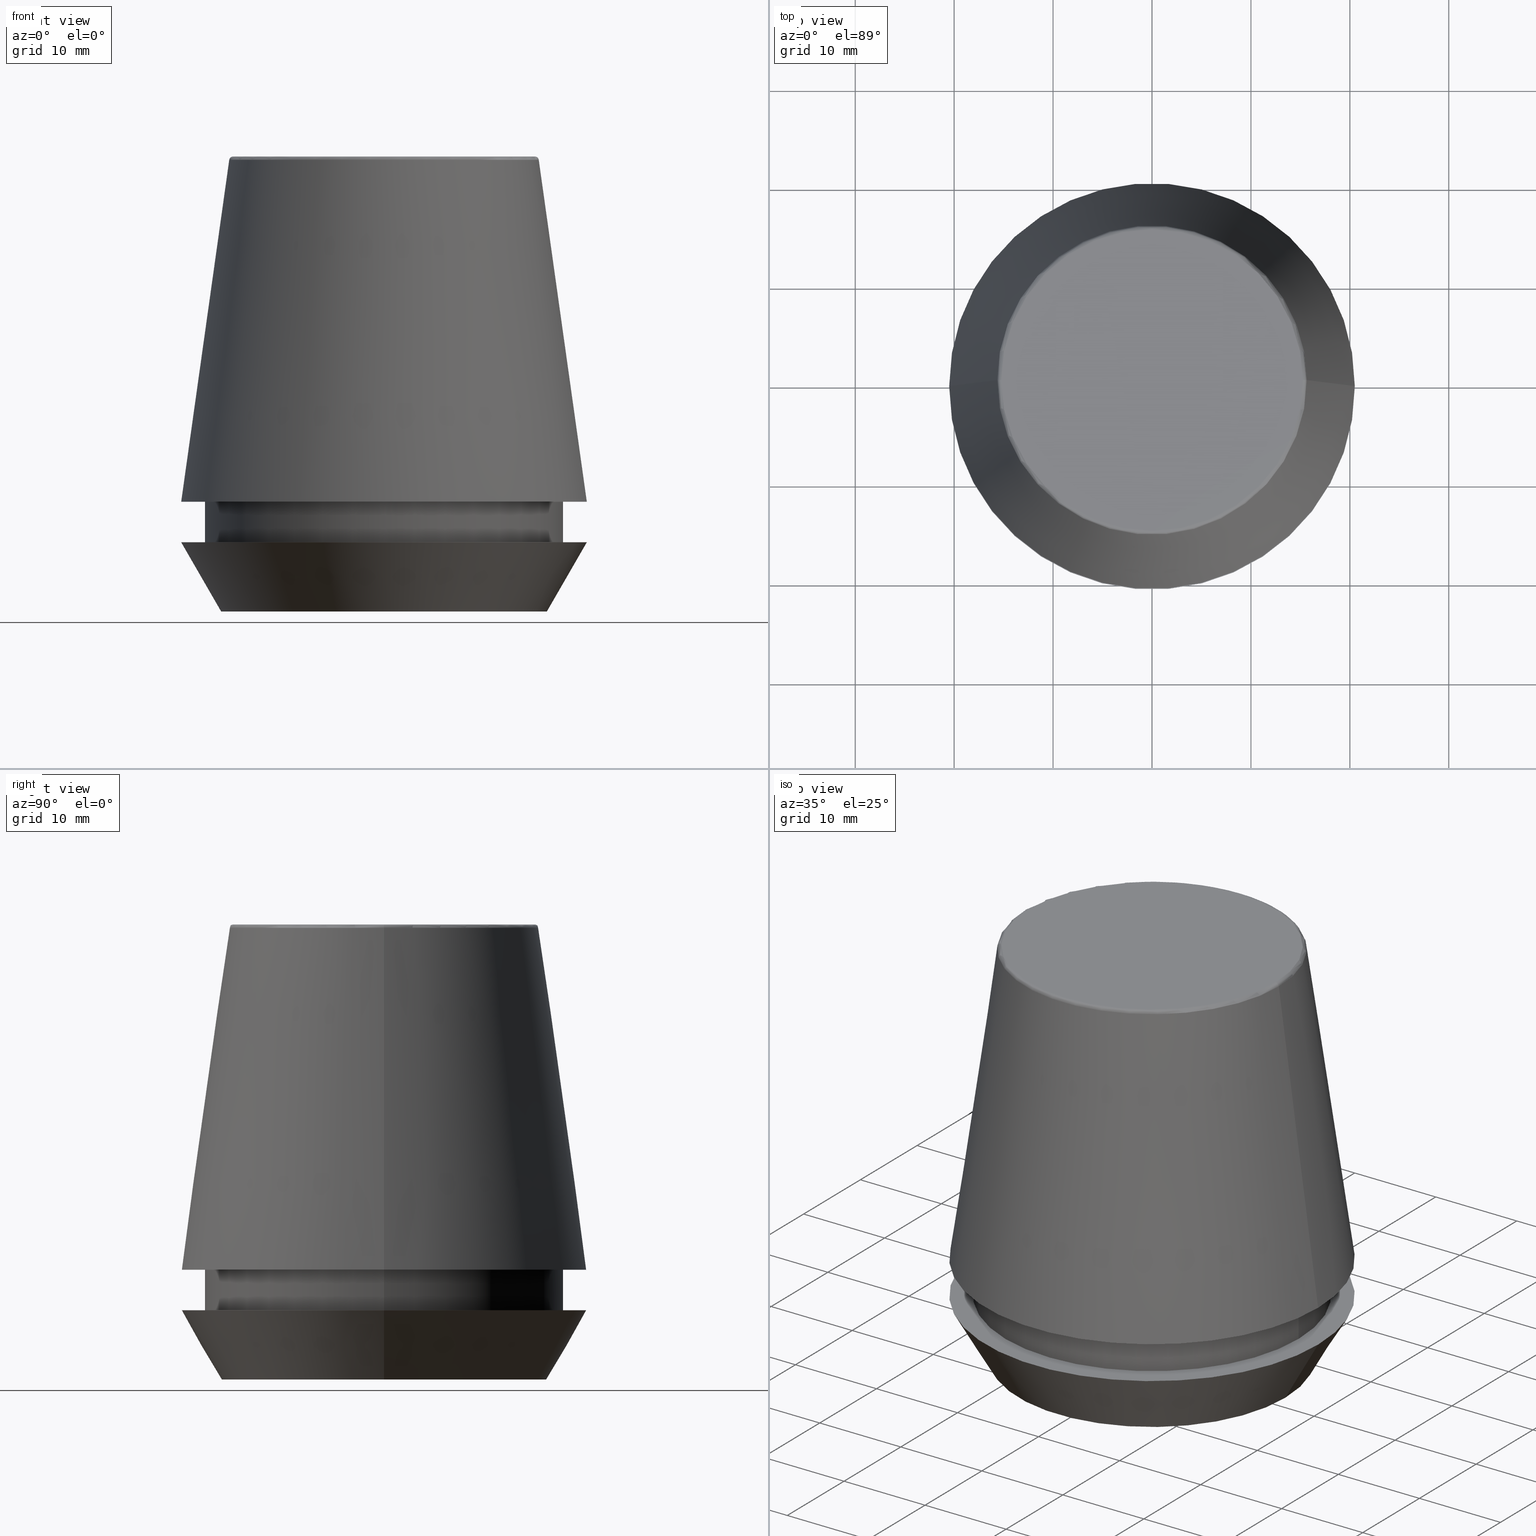
[diagram: canonical four-view strip — front | top / right | iso, engineering-drawing reading convention]
A machine part, canonical four-view strip (front | top / right | iso — engineering-drawing reading convention). The complete STEP part file that produces these views, byte-faithful:
ISO-10303-21;
HEADER;
FILE_DESCRIPTION (( 'STEP AP203' ),
    '1' );
FILE_NAME ('TAP COLLET ER 40G 22.0 X 18.0.STEP',
    '2019-04-10T04:18:57',
    ( '' ),
    ( '' ),
    'SwSTEP 2.0',
    'SolidWorks 2014',
    '' );
FILE_SCHEMA (( 'CONFIG_CONTROL_DESIGN' ));
ENDSEC;

DATA;
#1 = DIRECTION ( 'NONE',  ( 1.000000000000000000, 0.0000000000000000000, 0.0000000000000000000 ) ) ;
#2 = DIRECTION ( 'NONE',  ( 0.0000000000000000000, 0.0000000000000000000, 1.000000000000000000 ) ) ;
#3 = CARTESIAN_POINT ( 'NONE',  ( 0.0000000000000000000, 0.0000000000000000000, 6.999999999999999100 ) ) ;
#4 = DATE_AND_TIME ( #84, #159 ) ;
#5 = EDGE_CURVE ( 'NONE', #165, #91, #315, .T. ) ;
#6 = DIRECTION ( 'NONE',  ( 1.000000000000000000, 0.0000000000000000000, 0.0000000000000000000 ) ) ;
#7 = VECTOR ( 'NONE', #155, 1000.000000000000000 ) ;
#8 = EDGE_LOOP ( 'NONE', ( #63, #186, #370, #310 ) ) ;
#9 = EDGE_LOOP ( 'NONE', ( #60, #185 ) ) ;
#10 = PRODUCT_DEFINITION_SHAPE ( 'NONE', 'NONE',  #162 ) ;
#11 = CARTESIAN_POINT ( 'NONE',  ( -20.50000000000000000, 2.510525938252074100E-015, 7.000000000000006200 ) ) ;
#12 = EDGE_CURVE ( 'NONE', #49, #363, #160, .T. ) ;
#13 = PERSON_AND_ORGANIZATION ( #78, #73 ) ;
#14 = CONICAL_SURFACE ( 'NONE', #244, 20.50032537154048700, 0.1396263401595396200 ) ;
#15 = LINE ( 'NONE', #376, #7 ) ;
#16 = EDGE_CURVE ( 'NONE', #165, #173, #15, .T. ) ;
#17 = CARTESIAN_POINT ( 'NONE',  ( 0.0000000000000000000, 0.0000000000000000000, 45.60000000000000100 ) ) ;
#18 =( NAMED_UNIT ( * ) SI_UNIT ( $, .STERADIAN. ) SOLID_ANGLE_UNIT ( ) );
#19 = ORIENTED_EDGE ( 'NONE', *, *, #16, .T. ) ;
#20 = CARTESIAN_POINT ( 'NONE',  ( 0.0000000000000000000, 0.0000000000000000000, 11.09999999999999800 ) ) ;
#21 = DIRECTION ( 'NONE',  ( 1.000000000000000000, 0.0000000000000000000, 0.0000000000000000000 ) ) ;
#22 = ORIENTED_EDGE ( 'NONE', *, *, #329, .T. ) ;
#23 = ORIENTED_EDGE ( 'NONE', *, *, #212, .T. ) ;
#24 = DIRECTION ( 'NONE',  ( 1.000000000000000000, 0.0000000000000000000, 0.0000000000000000000 ) ) ;
#25 = CC_DESIGN_APPROVAL ( #178, ( #134 ) ) ;
#26 = CARTESIAN_POINT ( 'NONE',  ( 0.0000000000000000000, 0.0000000000000000000, 11.09999999999999800 ) ) ;
#27 = CARTESIAN_POINT ( 'NONE',  ( 0.0000000000000000000, 0.0000000000000000000, 0.0000000000000000000 ) ) ;
#28 = EDGE_CURVE ( 'NONE', #158, #382, #237, .T. ) ;
#29 = DIRECTION ( 'NONE',  ( 1.000000000000000000, 0.0000000000000000000, 0.0000000000000000000 ) ) ;
#30 = CIRCLE ( 'NONE', #252, 15.24773554530077600 ) ;
#31 = CALENDAR_DATE ( 2019, 10, 4 ) ;
#32 = CC_DESIGN_DATE_AND_TIME_ASSIGNMENT ( #4, #308, ( #357 ) ) ;
#33 = DIRECTION ( 'NONE',  ( -0.0000000000000000000, -0.0000000000000000000, 1.000000000000000000 ) ) ;
#34 = FACE_OUTER_BOUND ( 'NONE', #256, .T. ) ;
#35 = AXIS2_PLACEMENT_3D ( 'NONE', #3, #269, #236 ) ;
#36 = CARTESIAN_POINT ( 'NONE',  ( 0.0000000000000000000, 0.0000000000000000000, 46.00000000000000000 ) ) ;
#37 = APPROVAL_DATE_TIME ( #346, #178 ) ;
#38 = PRODUCT ( 'TAP COLLET ER 40G 22.0 X 18.0', 'TAP COLLET ER 40G 22.0 X 18.0', '', ( #106 ) ) ;
#39 = FACE_BOUND ( 'NONE', #247, .T. ) ;
#40 = EDGE_CURVE ( 'NONE', #327, #173, #307, .T. ) ;
#41 = PERSON_AND_ORGANIZATION_ROLE ( 'creator' ) ;
#42 = APPROVAL_PERSON_ORGANIZATION ( #121, #178, #115 ) ;
#43 = FACE_OUTER_BOUND ( 'NONE', #230, .T. ) ;
#44 = DIRECTION ( 'NONE',  ( 0.4999999999999941700, 0.0000000000000000000, 0.8660254037844420400 ) ) ;
#45 = ADVANCED_FACE ( 'NONE', ( #87 ), #64, .F. ) ;
#46 = DIRECTION ( 'NONE',  ( -1.000000000000000000, 1.224646799147353900E-016, 0.0000000000000000000 ) ) ;
#47 = AXIS2_PLACEMENT_3D ( 'NONE', #270, #194, #61 ) ;
#48 = CC_DESIGN_PERSON_AND_ORGANIZATION_ASSIGNMENT ( #95, #41, ( #134 ) ) ;
#49 = VERTEX_POINT ( 'NONE', #232 ) ;
#50 = ORIENTED_EDGE ( 'NONE', *, *, #272, .F. ) ;
#51 = CARTESIAN_POINT ( 'NONE',  ( 18.10000000000000500, 0.0000000000000000000, 46.00000000000000000 ) ) ;
#52 = FACE_BOUND ( 'NONE', #89, .T. ) ;
#53 = COORDINATED_UNIVERSAL_TIME_OFFSET ( 5, 30, .AHEAD. ) ;
#54 = CIRCLE ( 'NONE', #360, 20.50000000000000000 ) ;
#55 = ORIENTED_EDGE ( 'NONE', *, *, #212, .F. ) ;
#56 = ORIENTED_EDGE ( 'NONE', *, *, #341, .T. ) ;
#57 = ORIENTED_EDGE ( 'NONE', *, *, #338, .T. ) ;
#58 = AXIS2_PLACEMENT_3D ( 'NONE', #180, #246, #1 ) ;
#59 = CARTESIAN_POINT ( 'NONE',  ( 0.0000000000000000000, 20.50032537154048700, 11.09999999999999800 ) ) ;
#60 = ORIENTED_EDGE ( 'NONE', *, *, #204, .F. ) ;
#61 = DIRECTION ( 'NONE',  ( 1.000000000000000000, 0.0000000000000000000, 0.0000000000000000000 ) ) ;
#62 = CARTESIAN_POINT ( 'NONE',  ( -15.24773554530077600, 1.891563625393435400E-015, 46.00000000000000000 ) ) ;
#63 = ORIENTED_EDGE ( 'NONE', *, *, #5, .T. ) ;
#64 = PLANE ( 'NONE',  #375 ) ;
#65 = LOCAL_TIME ( 9, 48, 57.00000000000000000, #140 ) ;
#66 = DIRECTION ( 'NONE',  ( 0.0000000000000000000, -1.000000000000000000, 0.0000000000000000000 ) ) ;
#67 = FACE_OUTER_BOUND ( 'NONE', #243, .T. ) ;
#68 = EDGE_LOOP ( 'NONE', ( #75, #288, #210, #325 ) ) ;
#69 = CARTESIAN_POINT ( 'NONE',  ( 20.50000000000000000, 0.0000000000000000000, 7.000000000000006200 ) ) ;
#70 = APPROVAL ( #274, 'UNSPECIFIED' ) ;
#71 = LOCAL_TIME ( 9, 48, 57.00000000000000000, #147 ) ;
#72 = DIRECTION ( 'NONE',  ( 1.000000000000000000, 0.0000000000000000000, 0.0000000000000000000 ) ) ;
#73 = ORGANIZATION ( 'UNSPECIFIED', 'UNSPECIFIED', '' ) ;
#74 = APPROVAL_ROLE ( '' ) ;
#75 = ORIENTED_EDGE ( 'NONE', *, *, #324, .F. ) ;
#76 = ADVANCED_FACE ( 'NONE', ( #241 ), #122, .T. ) ;
#77 = ORIENTED_EDGE ( 'NONE', *, *, #40, .T. ) ;
#78 = PERSON ( 'UNSPECIFIED', 'UNSPECIFIED', 'UNSPECIFIED', ('UNSPECIFIED'), ('UNSPECIFIED'), ('UNSPECIFIED') ) ;
#79 = EDGE_CURVE ( 'NONE', #165, #317, #199, .T. ) ;
#80 = VECTOR ( 'NONE', #137, 1000.000000000000000 ) ;
#81 = ORIENTED_EDGE ( 'NONE', *, *, #319, .F. ) ;
#82 = CARTESIAN_POINT ( 'NONE',  ( -15.24773554530077600, 1.867309052979791600E-015, 45.60000000000000100 ) ) ;
#83 = DIRECTION ( 'NONE',  ( 1.000000000000000000, 0.0000000000000000000, 0.0000000000000000000 ) ) ;
#84 = CALENDAR_DATE ( 2019, 10, 4 ) ;
#85 = EDGE_CURVE ( 'NONE', #220, #136, #54, .T. ) ;
#86 = DIRECTION ( 'NONE',  ( 0.0000000000000000000, 0.0000000000000000000, -1.000000000000000000 ) ) ;
#87 = FACE_OUTER_BOUND ( 'NONE', #9, .T. ) ;
#88 = ADVANCED_FACE ( 'NONE', ( #362 ), #227, .T. ) ;
#89 = EDGE_LOOP ( 'NONE', ( #23, #103 ) ) ;
#90 = ORIENTED_EDGE ( 'NONE', *, *, #12, .T. ) ;
#91 = VERTEX_POINT ( 'NONE', #260 ) ;
#92 = APPLICATION_PROTOCOL_DEFINITION ( 'international standard', 'config_control_design', 1994, #385 ) ;
#93 = CLOSED_SHELL ( 'NONE', ( #262, #352, #113, #326, #45, #332, #216, #88, #265, #76, #171, #255 ) ) ;
#94 = DIRECTION ( 'NONE',  ( 1.000000000000000000, 0.0000000000000000000, 0.0000000000000000000 ) ) ;
#95 = PERSON_AND_ORGANIZATION ( #78, #73 ) ;
#96 = CC_DESIGN_PERSON_AND_ORGANIZATION_ASSIGNMENT ( #380, #215, ( #38 ) ) ;
#97 = ORIENTED_EDGE ( 'NONE', *, *, #107, .T. ) ;
#98 = ADVANCED_BREP_SHAPE_REPRESENTATION ( 'TAP COLLET ER 40G 22.0 X 18.0', ( #176, #114 ), #278 ) ;
#99 = ORIENTED_EDGE ( 'NONE', *, *, #85, .F. ) ;
#100 = DIRECTION ( 'NONE',  ( 0.0000000000000000000, 0.0000000000000000000, -1.000000000000000000 ) ) ;
#101 = PRODUCT_RELATED_PRODUCT_CATEGORY ( 'detail', '', ( #38 ) ) ;
#102 = DIRECTION ( 'NONE',  ( -0.0000000000000000000, -0.0000000000000000000, 1.000000000000000000 ) ) ;
#103 = ORIENTED_EDGE ( 'NONE', *, *, #28, .T. ) ;
#104 = DIRECTION ( 'NONE',  ( -0.0000000000000000000, -0.0000000000000000000, 1.000000000000000000 ) ) ;
#105 = ORIENTED_EDGE ( 'NONE', *, *, #5, .F. ) ;
#106 = MECHANICAL_CONTEXT ( 'NONE', #145, 'mechanical' ) ;
#107 = EDGE_CURVE ( 'NONE', #91, #165, #354, .T. ) ;
#108 = CONICAL_SURFACE ( 'NONE', #229, 16.45854811567268100, 0.5235987755982921500 ) ;
#109 = DIRECTION ( 'NONE',  ( -1.000000000000000000, 0.0000000000000000000, -0.0000000000000000000 ) ) ;
#110 = CC_DESIGN_APPROVAL ( #153, ( #162 ) ) ;
#111 = TOROIDAL_SURFACE ( 'NONE', #242, 15.24773554530077600, 0.3999999999999991900 ) ;
#112 = DIRECTION ( 'NONE',  ( -0.0000000000000000000, -0.0000000000000000000, 1.000000000000000000 ) ) ;
#113 = ADVANCED_FACE ( 'NONE', ( #277 ), #266, .T. ) ;
#114 = AXIS2_PLACEMENT_3D ( 'NONE', #27, #2, #203 ) ;
#115 = APPROVAL_ROLE ( '' ) ;
#116 = DIRECTION ( 'NONE',  ( -0.0000000000000000000, -0.0000000000000000000, 1.000000000000000000 ) ) ;
#117 = CARTESIAN_POINT ( 'NONE',  ( 15.64384277279740400, 2.213191991290356800E-015, 45.65566924038402900 ) ) ;
#118 = FACE_OUTER_BOUND ( 'NONE', #273, .T. ) ;
#119 = ORIENTED_EDGE ( 'NONE', *, *, #12, .F. ) ;
#120 = AXIS2_PLACEMENT_3D ( 'NONE', #59, #174, #21 ) ;
#121 = PERSON_AND_ORGANIZATION ( #78, #73 ) ;
#122 = CONICAL_SURFACE ( 'NONE', #383, 20.50032537154048700, 0.1396263401595396200 ) ;
#123 = CARTESIAN_POINT ( 'NONE',  ( 18.10000000000000500, 0.0000000000000000000, 11.09999999999999800 ) ) ;
#124 = CARTESIAN_POINT ( 'NONE',  ( 15.24773554530077600, 0.0000000000000000000, 45.60000000000000100 ) ) ;
#125 = DIRECTION ( 'NONE',  ( -0.0000000000000000000, -0.0000000000000000000, 1.000000000000000000 ) ) ;
#126 = AXIS2_PLACEMENT_3D ( 'NONE', #344, #253, #24 ) ;
#127 = CIRCLE ( 'NONE', #348, 18.10000000000000100 ) ;
#128 = PERSON_AND_ORGANIZATION ( #78, #73 ) ;
#129 = FACE_OUTER_BOUND ( 'NONE', #205, .T. ) ;
#130 = DIRECTION ( 'NONE',  ( 0.0000000000000000000, -0.0000000000000000000, 1.000000000000000000 ) ) ;
#131 = VERTEX_POINT ( 'NONE', #271 ) ;
#132 = ORIENTED_EDGE ( 'NONE', *, *, #316, .T. ) ;
#133 = DIRECTION ( 'NONE',  ( -0.0000000000000000000, -0.0000000000000000000, 1.000000000000000000 ) ) ;
#134 = PRODUCT_DEFINITION_FORMATION_WITH_SPECIFIED_SOURCE ( 'ANY', '', #38, .NOT_KNOWN. ) ;
#135 = AXIS2_PLACEMENT_3D ( 'NONE', #20, #223, #314 ) ;
#136 = VERTEX_POINT ( 'NONE', #69 ) ;
#137 = DIRECTION ( 'NONE',  ( -0.0000000000000000000, -0.0000000000000000000, 1.000000000000000000 ) ) ;
#138 = DIRECTION ( 'NONE',  ( -1.000000000000000000, 0.0000000000000000000, -0.0000000000000000000 ) ) ;
#139 = DIRECTION ( 'NONE',  ( 0.0000000000000000000, 0.0000000000000000000, -1.000000000000000000 ) ) ;
#140 = COORDINATED_UNIVERSAL_TIME_OFFSET ( 5, 30, .AHEAD. ) ;
#141 = VERTEX_POINT ( 'NONE', #323 ) ;
#142 = CIRCLE ( 'NONE', #226, 20.50032537154048700 ) ;
#143 = APPROVAL_STATUS ( 'not_yet_approved' ) ;
#144 = EDGE_LOOP ( 'NONE', ( #322, #213, #57, #77 ) ) ;
#145 = APPLICATION_CONTEXT ( 'configuration controlled 3d designs of mechanical parts and assemblies' ) ;
#146 = CARTESIAN_POINT ( 'NONE',  ( 0.0000000000000000000, 0.0000000000000000000, 46.00000000000000000 ) ) ;
#147 = COORDINATED_UNIVERSAL_TIME_OFFSET ( 5, 30, .AHEAD. ) ;
#148 = CC_DESIGN_DATE_AND_TIME_ASSIGNMENT ( #198, #261, ( #162 ) ) ;
#149 = DIRECTION ( 'NONE',  ( 1.000000000000000000, 0.0000000000000000000, 0.0000000000000000000 ) ) ;
#150 = SHAPE_DEFINITION_REPRESENTATION ( #10, #98 ) ;
#151 = CARTESIAN_POINT ( 'NONE',  ( 0.0000000000000000000, 0.0000000000000000000, 11.09999999999999800 ) ) ;
#152 = CARTESIAN_POINT ( 'NONE',  ( 20.50032537154048700, 2.510565784773633700E-015, 11.09999999999999800 ) ) ;
#153 = APPROVAL ( #143, 'UNSPECIFIED' ) ;
#154 = LINE ( 'NONE', #51, #80 ) ;
#155 = DIRECTION ( 'NONE',  ( 0.1391731009600587200, 1.704378926181473400E-017, -0.9902680687415712500 ) ) ;
#156 = VERTEX_POINT ( 'NONE', #62 ) ;
#157 = AXIS2_PLACEMENT_3D ( 'NONE', #328, #139, #109 ) ;
#158 = VERTEX_POINT ( 'NONE', #349 ) ;
#159 = LOCAL_TIME ( 9, 48, 57.00000000000000000, #235 ) ;
#160 = CIRCLE ( 'NONE', #35, 18.10000000000000100 ) ;
#161 = PERSON_AND_ORGANIZATION_ROLE ( 'design_supplier' ) ;
#162 = PRODUCT_DEFINITION ( 'UNKNOWN', '', #134, #182 ) ;
#163 = CARTESIAN_POINT ( 'NONE',  ( 0.0000000000000000000, 0.0000000000000000000, 0.0000000000000000000 ) ) ;
#164 = CARTESIAN_POINT ( 'NONE',  ( 0.0000000000000000000, 0.0000000000000000000, 11.09999999999999800 ) ) ;
#165 = VERTEX_POINT ( 'NONE', #117 ) ;
#166 = DIRECTION ( 'NONE',  ( -0.0000000000000000000, -0.0000000000000000000, 1.000000000000000000 ) ) ;
#167 = DIRECTION ( 'NONE',  ( -0.0000000000000000000, -0.0000000000000000000, 1.000000000000000000 ) ) ;
#168 = ORIENTED_EDGE ( 'NONE', *, *, #204, .T. ) ;
#169 = EDGE_CURVE ( 'NONE', #136, #220, #191, .T. ) ;
#170 = CARTESIAN_POINT ( 'NONE',  ( 0.0000000000000000000, 15.24773554530077600, 46.00000000000000000 ) ) ;
#171 = ADVANCED_FACE ( 'NONE', ( #43 ), #111, .T. ) ;
#172 = CC_DESIGN_PERSON_AND_ORGANIZATION_ASSIGNMENT ( #128, #181, ( #162 ) ) ;
#173 = VERTEX_POINT ( 'NONE', #152 ) ;
#174 = DIRECTION ( 'NONE',  ( 0.0000000000000000000, -0.0000000000000000000, 1.000000000000000000 ) ) ;
#175 = CARTESIAN_POINT ( 'NONE',  ( 0.0000000000000000000, 0.0000000000000000000, 45.65566924038402900 ) ) ;
#176 = MANIFOLD_SOLID_BREP ( 'Revolve1', #93 ) ;
#177 = EDGE_LOOP ( 'NONE', ( #90, #386, #55, #258 ) ) ;
#178 = APPROVAL ( #321, 'UNSPECIFIED' ) ;
#179 = APPROVAL_ROLE ( '' ) ;
#180 = CARTESIAN_POINT ( 'NONE',  ( 0.0000000000000000000, 0.0000000000000000000, 11.09999999999999800 ) ) ;
#181 = PERSON_AND_ORGANIZATION_ROLE ( 'creator' ) ;
#182 = DESIGN_CONTEXT ( 'detailed design', #385, 'design' ) ;
#183 = DIRECTION ( 'NONE',  ( 1.000000000000000000, 0.0000000000000000000, 0.0000000000000000000 ) ) ;
#184 = VECTOR ( 'NONE', #358, 1000.000000000000000 ) ;
#185 = ORIENTED_EDGE ( 'NONE', *, *, #311, .F. ) ;
#186 = ORIENTED_EDGE ( 'NONE', *, *, #281, .T. ) ;
#187 = DIRECTION ( 'NONE',  ( -0.0000000000000000000, -0.0000000000000000000, 1.000000000000000000 ) ) ;
#188 = CC_DESIGN_APPROVAL ( #70, ( #357 ) ) ;
#189 = CARTESIAN_POINT ( 'NONE',  ( -18.10000000000000500, 2.216610706456710000E-015, 46.00000000000000000 ) ) ;
#190 = LINE ( 'NONE', #309, #263 ) ;
#191 = CIRCLE ( 'NONE', #298, 20.50000000000000000 ) ;
#192 = ORIENTED_EDGE ( 'NONE', *, *, #316, .F. ) ;
#193 = CC_DESIGN_PERSON_AND_ORGANIZATION_ASSIGNMENT ( #13, #161, ( #134 ) ) ;
#194 = DIRECTION ( 'NONE',  ( -0.0000000000000000000, -0.0000000000000000000, 1.000000000000000000 ) ) ;
#195 = PLANE ( 'NONE',  #224 ) ;
#196 = PLANE ( 'NONE',  #120 ) ;
#197 = FACE_OUTER_BOUND ( 'NONE', #304, .T. ) ;
#198 = DATE_AND_TIME ( #276, #361 ) ;
#199 = CIRCLE ( 'NONE', #364, 0.3999999999999975800 ) ;
#200 = ORIENTED_EDGE ( 'NONE', *, *, #169, .T. ) ;
#201 = DIRECTION ( 'NONE',  ( 1.000000000000000000, 0.0000000000000000000, 0.0000000000000000000 ) ) ;
#202 =( NAMED_UNIT ( * ) PLANE_ANGLE_UNIT ( ) SI_UNIT ( $, .RADIAN. ) );
#203 = DIRECTION ( 'NONE',  ( 1.000000000000000000, 0.0000000000000000000, 0.0000000000000000000 ) ) ;
#204 = EDGE_CURVE ( 'NONE', #131, #141, #347, .T. ) ;
#205 = EDGE_LOOP ( 'NONE', ( #105, #19, #132, #286 ) ) ;
#206 = DIRECTION ( 'NONE',  ( 1.000000000000000000, 0.0000000000000000000, 0.0000000000000000000 ) ) ;
#207 = CARTESIAN_POINT ( 'NONE',  ( -18.10000000000000100, 2.216610706456709600E-015, 6.999999999999999100 ) ) ;
#208 = FACE_OUTER_BOUND ( 'NONE', #8, .T. ) ;
#209 = APPROVAL_DATE_TIME ( #285, #153 ) ;
#210 = ORIENTED_EDGE ( 'NONE', *, *, #305, .T. ) ;
#211 = CC_DESIGN_SECURITY_CLASSIFICATION ( #357, ( #134 ) ) ;
#212 = EDGE_CURVE ( 'NONE', #382, #158, #334, .T. ) ;
#213 = ORIENTED_EDGE ( 'NONE', *, *, #107, .F. ) ;
#214 = APPROVAL_DATE_TIME ( #295, #70 ) ;
#215 = PERSON_AND_ORGANIZATION_ROLE ( 'design_owner' ) ;
#216 = ADVANCED_FACE ( 'NONE', ( #39, #34 ), #343, .F. ) ;
#217 = APPROVAL_PERSON_ORGANIZATION ( #296, #153, #179 ) ;
#218 = DIRECTION ( 'NONE',  ( -0.0000000000000000000, -0.0000000000000000000, 1.000000000000000000 ) ) ;
#219 = LINE ( 'NONE', #189, #384 ) ;
#220 = VERTEX_POINT ( 'NONE', #11 ) ;
#221 = CARTESIAN_POINT ( 'NONE',  ( -16.45854811567268100, 2.015590826847124800E-015, 0.0000000000000000000 ) ) ;
#222 = ORIENTED_EDGE ( 'NONE', *, *, #79, .T. ) ;
#223 = DIRECTION ( 'NONE',  ( -0.0000000000000000000, -0.0000000000000000000, 1.000000000000000000 ) ) ;
#224 = AXIS2_PLACEMENT_3D ( 'NONE', #170, #86, #138 ) ;
#225 = APPROVAL_PERSON_ORGANIZATION ( #306, #70, #74 ) ;
#226 = AXIS2_PLACEMENT_3D ( 'NONE', #164, #218, #287 ) ;
#227 = CYLINDRICAL_SURFACE ( 'NONE', #355, 18.10000000000000500 ) ;
#228 = DIRECTION ( 'NONE',  ( 0.0000000000000000000, 0.0000000000000000000, -1.000000000000000000 ) ) ;
#229 = AXIS2_PLACEMENT_3D ( 'NONE', #371, #166, #183 ) ;
#230 = EDGE_LOOP ( 'NONE', ( #374, #97, #222, #336 ) ) ;
#231 = AXIS2_PLACEMENT_3D ( 'NONE', #17, #167, #282 ) ;
#232 = CARTESIAN_POINT ( 'NONE',  ( 18.10000000000000100, 0.0000000000000000000, 6.999999999999999100 ) ) ;
#233 = CARTESIAN_POINT ( 'NONE',  ( 0.0000000000000000000, 0.0000000000000000000, 11.09999999999999800 ) ) ;
#234 = AXIS2_PLACEMENT_3D ( 'NONE', #378, #187, #206 ) ;
#235 = COORDINATED_UNIVERSAL_TIME_OFFSET ( 5, 30, .AHEAD. ) ;
#236 = DIRECTION ( 'NONE',  ( 1.000000000000000000, 0.0000000000000000000, 0.0000000000000000000 ) ) ;
#237 = CIRCLE ( 'NONE', #58, 18.10000000000000500 ) ;
#238 = CARTESIAN_POINT ( 'NONE',  ( -20.50032537154048700, 0.0000000000000000000, 11.09999999999999800 ) ) ;
#239 = DIRECTION ( 'NONE',  ( -0.0000000000000000000, -0.0000000000000000000, 1.000000000000000000 ) ) ;
#240 = CARTESIAN_POINT ( 'NONE',  ( 0.0000000000000000000, 0.0000000000000000000, 0.0000000000000000000 ) ) ;
#241 = FACE_OUTER_BOUND ( 'NONE', #144, .T. ) ;
#242 = AXIS2_PLACEMENT_3D ( 'NONE', #387, #125, #373 ) ;
#243 = EDGE_LOOP ( 'NONE', ( #168, #290, #301, #297 ) ) ;
#244 = AXIS2_PLACEMENT_3D ( 'NONE', #151, #228, #248 ) ;
#245 = PERSON_AND_ORGANIZATION_ROLE ( 'classification_officer' ) ;
#246 = DIRECTION ( 'NONE',  ( -0.0000000000000000000, -0.0000000000000000000, 1.000000000000000000 ) ) ;
#247 = EDGE_LOOP ( 'NONE', ( #119, #50 ) ) ;
#248 = DIRECTION ( 'NONE',  ( -1.000000000000000000, 0.0000000000000000000, 0.0000000000000000000 ) ) ;
#249 = EDGE_CURVE ( 'NONE', #156, #317, #283, .T. ) ;
#250 = CARTESIAN_POINT ( 'NONE',  ( 15.24773554530077600, 0.0000000000000000000, 46.00000000000000000 ) ) ;
#251 = CARTESIAN_POINT ( 'NONE',  ( 0.0000000000000000000, 0.0000000000000000000, 0.0000000000000000000 ) ) ;
#252 = AXIS2_PLACEMENT_3D ( 'NONE', #146, #267, #6 ) ;
#253 = DIRECTION ( 'NONE',  ( -0.0000000000000000000, -0.0000000000000000000, 1.000000000000000000 ) ) ;
#254 = LINE ( 'NONE', #342, #184 ) ;
#255 = ADVANCED_FACE ( 'NONE', ( #367 ), #195, .F. ) ;
#256 = EDGE_LOOP ( 'NONE', ( #200, #292 ) ) ;
#257 = VECTOR ( 'NONE', #312, 1000.000000000000000 ) ;
#258 = ORIENTED_EDGE ( 'NONE', *, *, #305, .F. ) ;
#259 = AXIS2_PLACEMENT_3D ( 'NONE', #233, #356, #94 ) ;
#260 = CARTESIAN_POINT ( 'NONE',  ( -15.64384277279740400, 0.0000000000000000000, 45.65566924038402900 ) ) ;
#261 = DATE_TIME_ROLE ( 'creation_date' ) ;
#262 = ADVANCED_FACE ( 'NONE', ( #208 ), #359, .T. ) ;
#263 = VECTOR ( 'NONE', #44, 1000.000000000000000 ) ;
#264 = AXIS2_PLACEMENT_3D ( 'NONE', #289, #102, #29 ) ;
#265 = ADVANCED_FACE ( 'NONE', ( #197, #52 ), #196, .F. ) ;
#266 = CYLINDRICAL_SURFACE ( 'NONE', #264, 18.10000000000000500 ) ;
#267 = DIRECTION ( 'NONE',  ( -0.0000000000000000000, -0.0000000000000000000, 1.000000000000000000 ) ) ;
#268 = UNCERTAINTY_MEASURE_WITH_UNIT (LENGTH_MEASURE( 1.000000000000000100E-005 ), #284, 'distance_accuracy_value', 'NONE');
#269 = DIRECTION ( 'NONE',  ( -0.0000000000000000000, -0.0000000000000000000, 1.000000000000000000 ) ) ;
#270 = CARTESIAN_POINT ( 'NONE',  ( 0.0000000000000000000, 0.0000000000000000000, 45.65566924038402900 ) ) ;
#271 = CARTESIAN_POINT ( 'NONE',  ( 16.45854811567268100, 0.0000000000000000000, 0.0000000000000000000 ) ) ;
#272 = EDGE_CURVE ( 'NONE', #363, #49, #127, .T. ) ;
#273 = EDGE_LOOP ( 'NONE', ( #81, #333, #22, #99 ) ) ;
#274 = APPROVAL_STATUS ( 'not_yet_approved' ) ;
#275 = CIRCLE ( 'NONE', #340, 0.3999999999999975800 ) ;
#276 = CALENDAR_DATE ( 2019, 10, 4 ) ;
#277 = FACE_OUTER_BOUND ( 'NONE', #177, .T. ) ;
#278 =( GEOMETRIC_REPRESENTATION_CONTEXT ( 3 ) GLOBAL_UNCERTAINTY_ASSIGNED_CONTEXT ( ( #268 ) ) GLOBAL_UNIT_ASSIGNED_CONTEXT ( ( #284, #202, #18 ) ) REPRESENTATION_CONTEXT ( 'NONE', 'WORKASPACE' ) );
#279 = EDGE_LOOP ( 'NONE', ( #56, #335 ) ) ;
#280 = DIRECTION ( 'NONE',  ( 1.224646799147353200E-016, 1.000000000000000000, 0.0000000000000000000 ) ) ;
#281 = EDGE_CURVE ( 'NONE', #91, #156, #275, .T. ) ;
#282 = DIRECTION ( 'NONE',  ( 1.000000000000000000, 0.0000000000000000000, 0.0000000000000000000 ) ) ;
#283 = CIRCLE ( 'NONE', #126, 15.24773554530077600 ) ;
#284 =( LENGTH_UNIT ( ) NAMED_UNIT ( * ) SI_UNIT ( .MILLI., .METRE. ) );
#285 = DATE_AND_TIME ( #368, #65 ) ;
#286 = ORIENTED_EDGE ( 'NONE', *, *, #338, .F. ) ;
#287 = DIRECTION ( 'NONE',  ( 1.000000000000000000, 0.0000000000000000000, 0.0000000000000000000 ) ) ;
#288 = ORIENTED_EDGE ( 'NONE', *, *, #272, .T. ) ;
#289 = CARTESIAN_POINT ( 'NONE',  ( 0.0000000000000000000, 0.0000000000000000000, 46.00000000000000000 ) ) ;
#290 = ORIENTED_EDGE ( 'NONE', *, *, #319, .T. ) ;
#291 = AXIS2_PLACEMENT_3D ( 'NONE', #251, #116, #83 ) ;
#292 = ORIENTED_EDGE ( 'NONE', *, *, #85, .T. ) ;
#293 = DIRECTION ( 'NONE',  ( -0.0000000000000000000, -0.0000000000000000000, 1.000000000000000000 ) ) ;
#294 = DIRECTION ( 'NONE',  ( 1.000000000000000000, 0.0000000000000000000, 0.0000000000000000000 ) ) ;
#295 = DATE_AND_TIME ( #379, #71 ) ;
#296 = PERSON_AND_ORGANIZATION ( #78, #73 ) ;
#297 = ORIENTED_EDGE ( 'NONE', *, *, #329, .F. ) ;
#298 = AXIS2_PLACEMENT_3D ( 'NONE', #320, #133, #303 ) ;
#299 = DIRECTION ( 'NONE',  ( 1.000000000000000000, 0.0000000000000000000, 0.0000000000000000000 ) ) ;
#300 = CIRCLE ( 'NONE', #318, 16.45854811567268100 ) ;
#301 = ORIENTED_EDGE ( 'NONE', *, *, #169, .F. ) ;
#302 = ORIENTED_EDGE ( 'NONE', *, *, #40, .F. ) ;
#303 = DIRECTION ( 'NONE',  ( 1.000000000000000000, 0.0000000000000000000, 0.0000000000000000000 ) ) ;
#304 = EDGE_LOOP ( 'NONE', ( #302, #192 ) ) ;
#305 = EDGE_CURVE ( 'NONE', #49, #382, #154, .T. ) ;
#306 = PERSON_AND_ORGANIZATION ( #78, #73 ) ;
#307 = CIRCLE ( 'NONE', #259, 20.50032537154048700 ) ;
#308 = DATE_TIME_ROLE ( 'classification_date' ) ;
#309 = CARTESIAN_POINT ( 'NONE',  ( 16.45854811567268100, 0.0000000000000000000, 0.0000000000000000000 ) ) ;
#310 = ORIENTED_EDGE ( 'NONE', *, *, #79, .F. ) ;
#311 = EDGE_CURVE ( 'NONE', #141, #131, #300, .T. ) ;
#312 = DIRECTION ( 'NONE',  ( -0.4999999999999941700, 6.123233995736694500E-017, 0.8660254037844420400 ) ) ;
#313 = PERSON_AND_ORGANIZATION ( #78, #73 ) ;
#314 = DIRECTION ( 'NONE',  ( 1.000000000000000000, 0.0000000000000000000, 0.0000000000000000000 ) ) ;
#315 = CIRCLE ( 'NONE', #47, 15.64384277279740400 ) ;
#316 = EDGE_CURVE ( 'NONE', #173, #327, #142, .T. ) ;
#317 = VERTEX_POINT ( 'NONE', #250 ) ;
#318 = AXIS2_PLACEMENT_3D ( 'NONE', #240, #350, #201 ) ;
#319 = EDGE_CURVE ( 'NONE', #141, #220, #372, .T. ) ;
#320 = CARTESIAN_POINT ( 'NONE',  ( 0.0000000000000000000, 0.0000000000000000000, 7.000000000000006200 ) ) ;
#321 = APPROVAL_STATUS ( 'not_yet_approved' ) ;
#322 = ORIENTED_EDGE ( 'NONE', *, *, #16, .F. ) ;
#323 = CARTESIAN_POINT ( 'NONE',  ( -16.45854811567268100, 2.263058382549599700E-015, 0.0000000000000000000 ) ) ;
#324 = EDGE_CURVE ( 'NONE', #363, #158, #219, .T. ) ;
#325 = ORIENTED_EDGE ( 'NONE', *, *, #28, .F. ) ;
#326 = ADVANCED_FACE ( 'NONE', ( #67 ), #108, .T. ) ;
#327 = VERTEX_POINT ( 'NONE', #238 ) ;
#328 = CARTESIAN_POINT ( 'NONE',  ( 0.0000000000000000000, 20.50000000000000000, 7.000000000000002700 ) ) ;
#329 = EDGE_CURVE ( 'NONE', #131, #136, #190, .T. ) ;
#330 = CONICAL_SURFACE ( 'NONE', #234, 16.45854811567268100, 0.5235987755982921500 ) ;
#331 = LOCAL_TIME ( 9, 48, 57.00000000000000000, #353 ) ;
#332 = ADVANCED_FACE ( 'NONE', ( #118 ), #330, .T. ) ;
#333 = ORIENTED_EDGE ( 'NONE', *, *, #311, .T. ) ;
#334 = CIRCLE ( 'NONE', #135, 18.10000000000000500 ) ;
#335 = ORIENTED_EDGE ( 'NONE', *, *, #249, .T. ) ;
#336 = ORIENTED_EDGE ( 'NONE', *, *, #249, .F. ) ;
#337 = SECURITY_CLASSIFICATION_LEVEL ( 'unclassified' ) ;
#338 = EDGE_CURVE ( 'NONE', #91, #327, #254, .T. ) ;
#339 = DIRECTION ( 'NONE',  ( 0.0000000000000000000, 0.0000000000000000000, -1.000000000000000000 ) ) ;
#340 = AXIS2_PLACEMENT_3D ( 'NONE', #82, #280, #46 ) ;
#341 = EDGE_CURVE ( 'NONE', #317, #156, #30, .T. ) ;
#342 = CARTESIAN_POINT ( 'NONE',  ( -20.50032537154048700, 0.0000000000000000000, 11.09999999999999800 ) ) ;
#343 = PLANE ( 'NONE',  #157 ) ;
#344 = CARTESIAN_POINT ( 'NONE',  ( 0.0000000000000000000, 0.0000000000000000000, 46.00000000000000000 ) ) ;
#345 = DIRECTION ( 'NONE',  ( 1.000000000000000000, 0.0000000000000000000, 0.0000000000000000000 ) ) ;
#346 = DATE_AND_TIME ( #31, #331 ) ;
#347 = CIRCLE ( 'NONE', #291, 16.45854811567268100 ) ;
#348 = AXIS2_PLACEMENT_3D ( 'NONE', #377, #112, #345 ) ;
#349 = CARTESIAN_POINT ( 'NONE',  ( -18.10000000000000500, 2.216610706456710000E-015, 11.09999999999999800 ) ) ;
#350 = DIRECTION ( 'NONE',  ( -0.0000000000000000000, -0.0000000000000000000, 1.000000000000000000 ) ) ;
#351 = CC_DESIGN_PERSON_AND_ORGANIZATION_ASSIGNMENT ( #313, #245, ( #357 ) ) ;
#352 = ADVANCED_FACE ( 'NONE', ( #129 ), #14, .T. ) ;
#353 = COORDINATED_UNIVERSAL_TIME_OFFSET ( 5, 30, .AHEAD. ) ;
#354 = CIRCLE ( 'NONE', #366, 15.64384277279740400 ) ;
#355 = AXIS2_PLACEMENT_3D ( 'NONE', #36, #33, #72 ) ;
#356 = DIRECTION ( 'NONE',  ( -0.0000000000000000000, -0.0000000000000000000, 1.000000000000000000 ) ) ;
#357 = SECURITY_CLASSIFICATION ( '', '', #337 ) ;
#358 = DIRECTION ( 'NONE',  ( -0.1391731009600587200, 0.0000000000000000000, -0.9902680687415712500 ) ) ;
#359 = TOROIDAL_SURFACE ( 'NONE', #231, 15.24773554530077600, 0.3999999999999991900 ) ;
#360 = AXIS2_PLACEMENT_3D ( 'NONE', #365, #104, #299 ) ;
#361 = LOCAL_TIME ( 9, 48, 57.00000000000000000, #53 ) ;
#362 = FACE_OUTER_BOUND ( 'NONE', #68, .T. ) ;
#363 = VERTEX_POINT ( 'NONE', #207 ) ;
#364 = AXIS2_PLACEMENT_3D ( 'NONE', #124, #66, #339 ) ;
#365 = CARTESIAN_POINT ( 'NONE',  ( 0.0000000000000000000, 0.0000000000000000000, 7.000000000000006200 ) ) ;
#366 = AXIS2_PLACEMENT_3D ( 'NONE', #175, #293, #149 ) ;
#367 = FACE_OUTER_BOUND ( 'NONE', #279, .T. ) ;
#368 = CALENDAR_DATE ( 2019, 10, 4 ) ;
#369 = DIRECTION ( 'NONE',  ( -1.000000000000000000, 0.0000000000000000000, 0.0000000000000000000 ) ) ;
#370 = ORIENTED_EDGE ( 'NONE', *, *, #341, .F. ) ;
#371 = CARTESIAN_POINT ( 'NONE',  ( 0.0000000000000000000, 0.0000000000000000000, 0.0000000000000000000 ) ) ;
#372 = LINE ( 'NONE', #221, #257 ) ;
#373 = DIRECTION ( 'NONE',  ( 1.000000000000000000, 0.0000000000000000000, 0.0000000000000000000 ) ) ;
#374 = ORIENTED_EDGE ( 'NONE', *, *, #281, .F. ) ;
#375 = AXIS2_PLACEMENT_3D ( 'NONE', #163, #130, #294 ) ;
#376 = CARTESIAN_POINT ( 'NONE',  ( 20.50032537154048700, 2.510565784773633700E-015, 11.09999999999999800 ) ) ;
#377 = CARTESIAN_POINT ( 'NONE',  ( 0.0000000000000000000, 0.0000000000000000000, 6.999999999999999100 ) ) ;
#378 = CARTESIAN_POINT ( 'NONE',  ( 0.0000000000000000000, 0.0000000000000000000, 0.0000000000000000000 ) ) ;
#379 = CALENDAR_DATE ( 2019, 10, 4 ) ;
#380 = PERSON_AND_ORGANIZATION ( #78, #73 ) ;
#381 = APPLICATION_PROTOCOL_DEFINITION ( 'international standard', 'config_control_design', 1994, #145 ) ;
#382 = VERTEX_POINT ( 'NONE', #123 ) ;
#383 = AXIS2_PLACEMENT_3D ( 'NONE', #26, #100, #369 ) ;
#384 = VECTOR ( 'NONE', #239, 1000.000000000000000 ) ;
#385 = APPLICATION_CONTEXT ( 'configuration controlled 3d designs of mechanical parts and assemblies' ) ;
#386 = ORIENTED_EDGE ( 'NONE', *, *, #324, .T. ) ;
#387 = CARTESIAN_POINT ( 'NONE',  ( 0.0000000000000000000, 0.0000000000000000000, 45.60000000000000100 ) ) ;
ENDSEC;
END-ISO-10303-21;
